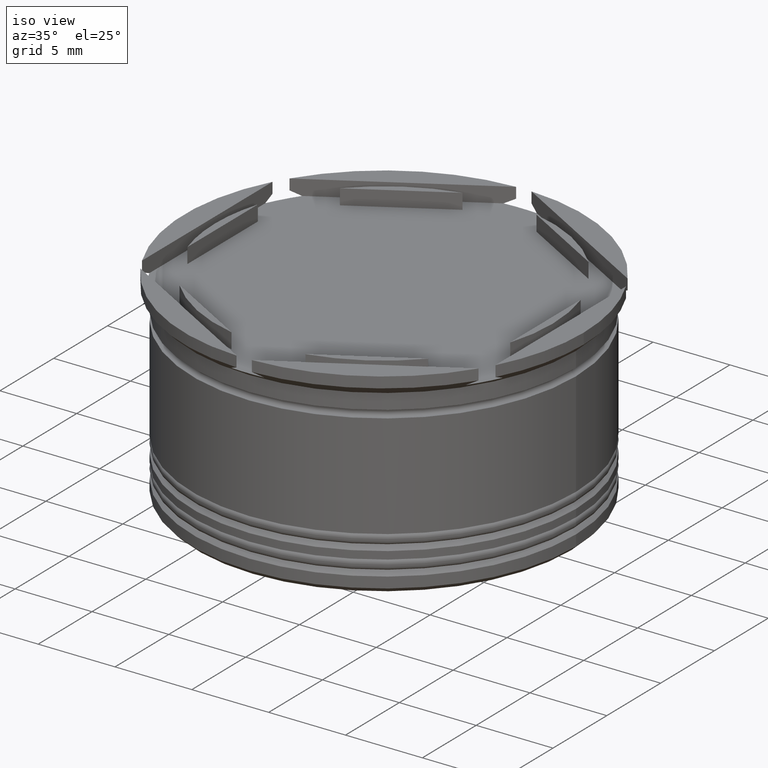
[diagram: clean part render]
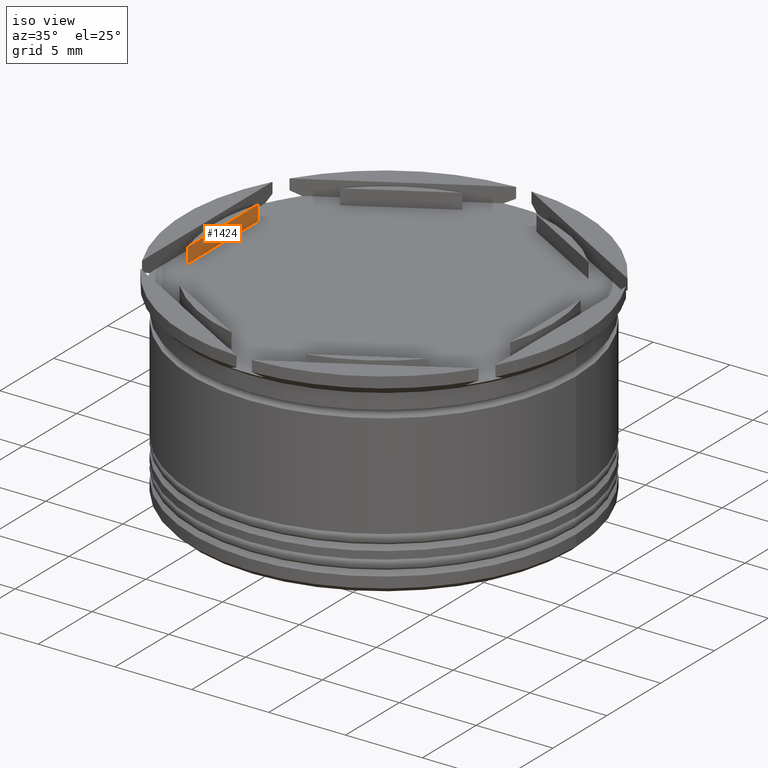
[diagram: same view with one face highlighted and labeled with its STEP entity id]
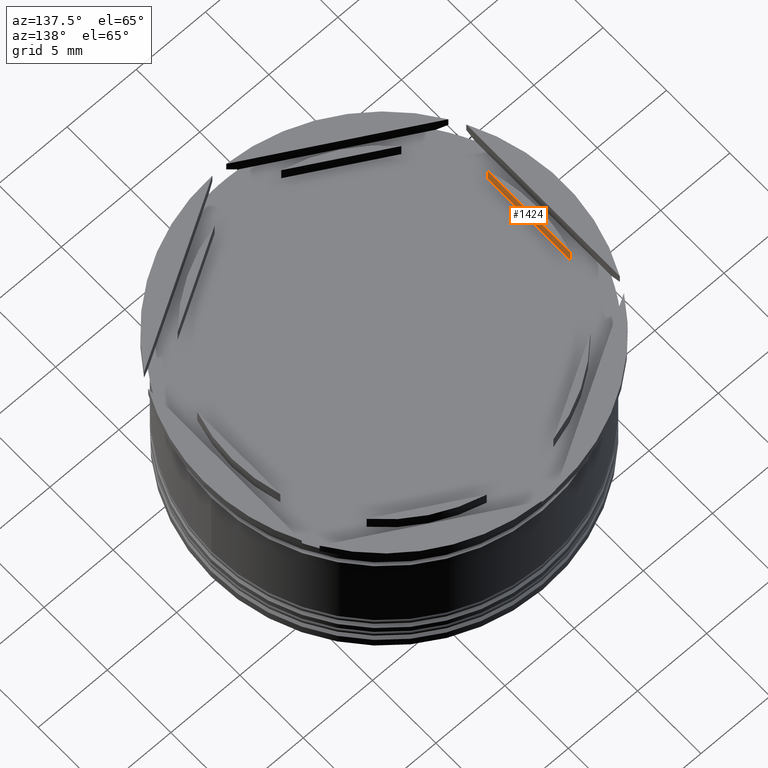
[diagram: same view with one face highlighted and labeled with its STEP entity id]
A machine part, iso view. The second image highlights one B-rep face of the part: STEP entity #1424.
A second angle (auxiliary view) of the same face is appended — the face is thin or edge-on in the first view.
In plain terms, the highlighted planar face has unit normal (-1, 0, -0).
Its self-contained STEP definition (entity closure, byte-faithful):
#24 = ORIENTED_EDGE ( 'NONE', *, *, #587, .F. ) ;
#84 = VECTOR ( 'NONE', #1124, 1000.000000000000000 ) ;
#89 = PLANE ( 'NONE',  #2369 ) ;
#164 = VERTEX_POINT ( 'NONE', #1824 ) ;
#177 = VECTOR ( 'NONE', #712, 1000.000000000000000 ) ;
#234 = ORIENTED_EDGE ( 'NONE', *, *, #657, .T. ) ;
#254 = DIRECTION ( 'NONE',  ( -1.000000000000000000, 0.000000000000000000, -0.000000000000000000 ) ) ;
#336 = EDGE_CURVE ( 'NONE', #371, #1653, #1083, .T. ) ;
#371 = VERTEX_POINT ( 'NONE', #2028 ) ;
#383 = ORIENTED_EDGE ( 'NONE', *, *, #336, .T. ) ;
#394 = CARTESIAN_POINT ( 'NONE',  ( -10.49999999999999467, -3.278719262151007285, 31.11269837220808654 ) ) ;
#462 = LINE ( 'NONE', #1194, #988 ) ;
#587 = EDGE_CURVE ( 'NONE', #1363, #1653, #462, .T. ) ;
#606 = CARTESIAN_POINT ( 'NONE',  ( -10.49999999999999467, 0.000000000000000000, 0.000000000000000000 ) ) ;
#657 = EDGE_CURVE ( 'NONE', #1363, #164, #2046, .T. ) ;
#658 = CARTESIAN_POINT ( 'NONE',  ( -10.49999999999999467, 6.062177826491065069, -33.07802986469086903 ) ) ;
#712 = DIRECTION ( 'NONE',  ( 0.000000000000000000, 1.000000000000000000, 0.000000000000000000 ) ) ;
#799 = LINE ( 'NONE', #394, #84 ) ;
#840 = DIRECTION ( 'NONE',  ( -0.000000000000000000, -0.000000000000000000, -1.000000000000000000 ) ) ;
#944 = DIRECTION ( 'NONE',  ( 0.000000000000000000, -1.000000000000000000, 0.000000000000000000 ) ) ;
#975 = ORIENTED_EDGE ( 'NONE', *, *, #2230, .F. ) ;
#988 = VECTOR ( 'NONE', #840, 1000.000000000000000 ) ;
#1083 = LINE ( 'NONE', #2361, #177 ) ;
#1124 = DIRECTION ( 'NONE',  ( 0.000000000000000000, 0.000000000000000000, 1.000000000000000000 ) ) ;
#1194 = CARTESIAN_POINT ( 'NONE',  ( -10.49999999999999467, 3.278719262151007285, 31.11269837220808654 ) ) ;
#1323 = CARTESIAN_POINT ( 'NONE',  ( -10.49999999999999467, 3.278719262151007285, -1.000000000000000888 ) ) ;
#1363 = VERTEX_POINT ( 'NONE', #1386 ) ;
#1373 = VECTOR ( 'NONE', #944, 1000.000000000000000 ) ;
#1386 = CARTESIAN_POINT ( 'NONE',  ( -10.49999999999999467, 3.278719262151008174, 0.000000000000000000 ) ) ;
#1424 = ADVANCED_FACE ( 'NONE', ( #1521 ), #89, .F. ) ;
#1521 = FACE_OUTER_BOUND ( 'NONE', #2382, .T. ) ;
#1653 = VERTEX_POINT ( 'NONE', #1323 ) ;
#1824 = CARTESIAN_POINT ( 'NONE',  ( -10.49999999999999467, -3.278719262151003289, 0.000000000000000000 ) ) ;
#2028 = CARTESIAN_POINT ( 'NONE',  ( -10.49999999999999467, -3.278719262151007285, -1.000000000000000888 ) ) ;
#2046 = LINE ( 'NONE', #606, #1373 ) ;
#2230 = EDGE_CURVE ( 'NONE', #371, #164, #799, .T. ) ;
#2262 = DIRECTION ( 'NONE',  ( -0.000000000000000000, 0.000000000000000000, 1.000000000000000000 ) ) ;
#2361 = CARTESIAN_POINT ( 'NONE',  ( -10.49999999999999467, 6.062177826491065069, -1.000000000000000888 ) ) ;
#2369 = AXIS2_PLACEMENT_3D ( 'NONE', #658, #254, #2262 ) ;
#2382 = EDGE_LOOP ( 'NONE', ( #234, #975, #383, #24 ) ) ;